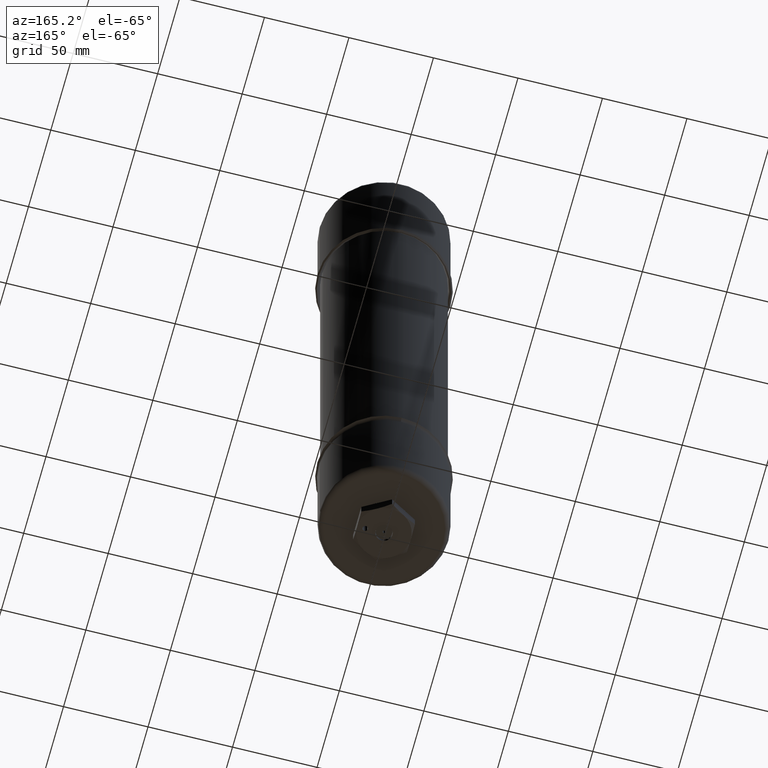
[diagram: clean part render]
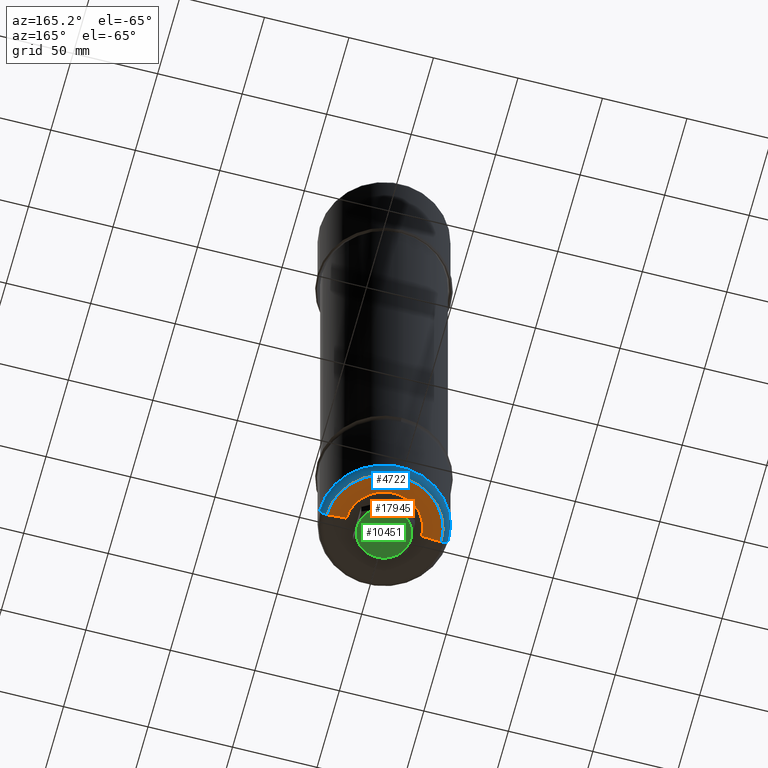
[diagram: same view with three faces highlighted in distinct colors, each labeled with its STEP entity id]
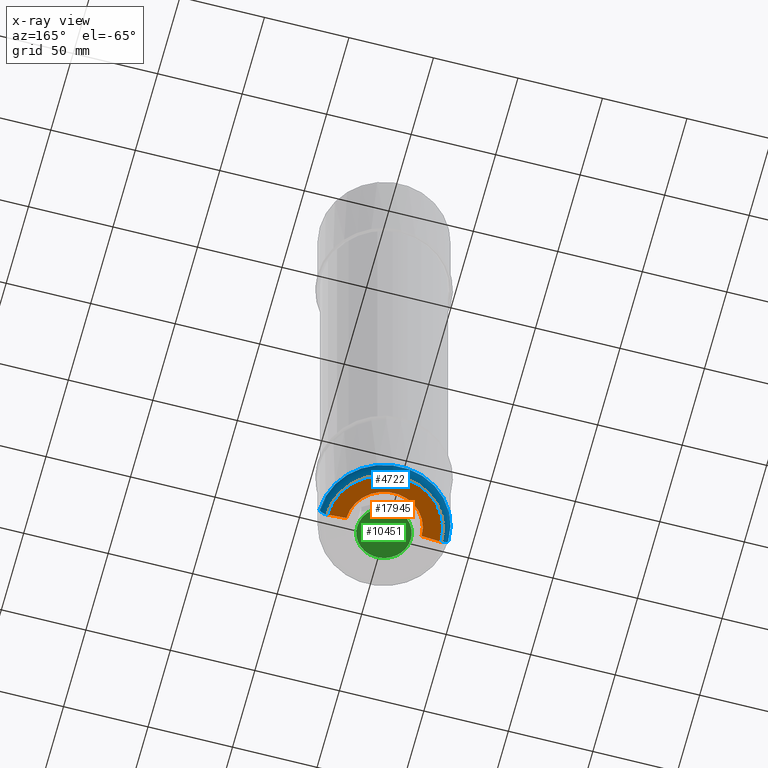
[diagram: x-ray of the same camera — body ghosted, the three highlighted faces saturated]
A machine part, auxiliary view with three faces highlighted in distinct colors.
The next image is the same camera in x-ray (body ghosted, the three faces saturated) — at least one of them is partly hidden behind the body in this view.
Their STEP definitions:

[orange] entity #17945 — the highlighted conical surface has half-angle 82.262 deg.
#51 = DIRECTION ( 'NONE',  ( 3.615957403777705200E-015, 5.894733914474515000E-022, -1.000000000000000000 ) ) ;
#816 = DIRECTION ( 'NONE',  ( -1.000000000000000000, 5.551115123126433500E-017, -2.497689594207326400E-015 ) ) ;
#1205 = EDGE_CURVE ( 'NONE', #12572, #12347, #1423, .T. ) ;
#1212 = AXIS2_PLACEMENT_3D ( 'NONE', #18170, #9481, #816 ) ;
#1370 = ORIENTED_EDGE ( 'NONE', *, *, #18360, .F. ) ;
#1423 = CIRCLE ( 'NONE', #1212, 0.8750000000000000000 ) ;
#2151 = EDGE_LOOP ( 'NONE', ( #1370, #4588, #18257, #7545 ) ) ;
#2587 = EDGE_CURVE ( 'NONE', #10941, #3626, #16254, .T. ) ;
#2686 = CONICAL_SURFACE ( 'NONE', #5515, 1.331253775764203800, 1.435734332793960900 ) ;
#3626 = VERTEX_POINT ( 'NONE', #8436 ) ;
#4345 = LINE ( 'NONE', #11577, #15454 ) ;
#4588 = ORIENTED_EDGE ( 'NONE', *, *, #1205, .F. ) ;
#4649 = CARTESIAN_POINT ( 'NONE',  ( 0.8750000000001068000, -3.578941676957135700E-015, -15.19849999999999700 ) ) ;
#4792 = CARTESIAN_POINT ( 'NONE',  ( -1.331253775764002200, -3.578900466739147000E-015, -15.26050000000000600 ) ) ;
#5088 = CARTESIAN_POINT ( 'NONE',  ( -0.8749999999998930900, -3.604227675632773200E-015, -15.19850000000000300 ) ) ;
#5187 = CARTESIAN_POINT ( 'NONE',  ( 1.070748055044184200E-013, -4.872241979974202000E-015, -15.26050000000000200 ) ) ;
#5515 = AXIS2_PLACEMENT_3D ( 'NONE', #15909, #51, #17451 ) ;
#6006 = VECTOR ( 'NONE', #8320, 39.37007874015748100 ) ;
#6639 = DIRECTION ( 'NONE',  ( -5.551115123125200300E-017, -1.000000000000000000, 0.0000000000000000000 ) ) ;
#7545 = ORIENTED_EDGE ( 'NONE', *, *, #2587, .T. ) ;
#8320 = DIRECTION ( 'NONE',  ( 0.9908929855085434300, 6.634386130111454200E-017, -0.1346517406867267500 ) ) ;
#8436 = CARTESIAN_POINT ( 'NONE',  ( 1.331253775764212400, -3.563667758552179300E-015, -15.26049999999999700 ) ) ;
#9481 = DIRECTION ( 'NONE',  ( 3.615957403777705200E-015, 5.894733914474515000E-022, -1.000000000000000000 ) ) ;
#9760 = EDGE_CURVE ( 'NONE', #12572, #10941, #4345, .T. ) ;
#10941 = VERTEX_POINT ( 'NONE', #4792 ) ;
#11577 = CARTESIAN_POINT ( 'NONE',  ( -1.331253775764096800, -3.578900466739141400E-015, -15.26050000000002000 ) ) ;
#12195 = FACE_OUTER_BOUND ( 'NONE', #2151, .T. ) ;
#12347 = VERTEX_POINT ( 'NONE', #4649 ) ;
#12572 = VERTEX_POINT ( 'NONE', #5088 ) ;
#14333 = AXIS2_PLACEMENT_3D ( 'NONE', #5187, #15305, #6639 ) ;
#15305 = DIRECTION ( 'NONE',  ( 3.491481426663245200E-015, 5.894733914543613400E-022, -1.000000000000000000 ) ) ;
#15454 = VECTOR ( 'NONE', #17287, 39.37007874015748900 ) ;
#15909 = CARTESIAN_POINT ( 'NONE',  ( 1.070748055044184700E-013, -3.652799896412780200E-015, -15.26050000000001500 ) ) ;
#16254 = CIRCLE ( 'NONE', #14333, 1.331253775764101000 ) ;
#16971 = CARTESIAN_POINT ( 'NONE',  ( 1.331253775764311000, -3.563667758552172200E-015, -15.26050000000001100 ) ) ;
#17287 = DIRECTION ( 'NONE',  ( -0.9908929855085424300, 5.500568974618211700E-017, -0.1346517406867338800 ) ) ;
#17451 = DIRECTION ( 'NONE',  ( -1.000000000000000000, 5.551115123126448300E-017, -3.283338510986518400E-015 ) ) ;
#17585 = LINE ( 'NONE', #16971, #6006 ) ;
#17945 = ADVANCED_FACE ( 'NONE', ( #12195 ), #2686, .F. ) ;
#18170 = CARTESIAN_POINT ( 'NONE',  ( 1.068506161453842100E-013, -3.652799932960130100E-015, -15.19850000000000100 ) ) ;
#18257 = ORIENTED_EDGE ( 'NONE', *, *, #9760, .T. ) ;
#18360 = EDGE_CURVE ( 'NONE', #12347, #3626, #17585, .T. ) ;

[blue] entity #4722 — the highlighted toroidal blend (fillet) surface has major radius 33.909 mm and minor (blend) radius 4.1656 mm.
#77 = ORIENTED_EDGE ( 'NONE', *, *, #9258, .F. ) ;
#706 = CARTESIAN_POINT ( 'NONE',  ( 1.335000000000106100, -3.726907379980153200E-015, -15.09649999999999500 ) ) ;
#860 = AXIS2_PLACEMENT_3D ( 'NONE', #15699, #7023, #17172 ) ;
#969 = CIRCLE ( 'NONE', #17019, 0.1639999999999999500 ) ;
#1080 = CARTESIAN_POINT ( 'NONE',  ( 1.070990278565909100E-013, -3.652799896412780200E-015, -15.26050000000000000 ) ) ;
#2160 = DIRECTION ( 'NONE',  ( 1.000000000000000000, -5.551115123126512400E-017, 0.0000000000000000000 ) ) ;
#2190 = VERTEX_POINT ( 'NONE', #12061 ) ;
#2545 = DIRECTION ( 'NONE',  ( 1.000000000000000000, -5.551115123126433500E-017, 3.274124936226833700E-015 ) ) ;
#4342 = CARTESIAN_POINT ( 'NONE',  ( 1.335000000000106500, -3.726907283306517700E-015, -15.26049999999999500 ) ) ;
#4722 = ADVANCED_FACE ( 'NONE', ( #11272 ), #9917, .T. ) ;
#5408 = CARTESIAN_POINT ( 'NONE',  ( -1.334999999999892500, -3.400608192015715700E-015, -15.26050000000000400 ) ) ;
#5585 = CIRCLE ( 'NONE', #9948, 1.334999999999999500 ) ;
#6095 = CIRCLE ( 'NONE', #18258, 0.1639999999999999500 ) ;
#6482 = ORIENTED_EDGE ( 'NONE', *, *, #17559, .T. ) ;
#6541 = DIRECTION ( 'NONE',  ( 1.000000000000000000, -5.551115123126442100E-017, 3.491481426663245600E-015 ) ) ;
#6989 = DIRECTION ( 'NONE',  ( 1.779758311459997800E-016, 1.000000000000000000, 5.894733920757606600E-022 ) ) ;
#7023 = DIRECTION ( 'NONE',  ( -3.491481426663245200E-015, -5.894733914543613400E-022, 1.000000000000000000 ) ) ;
#7542 = AXIS2_PLACEMENT_3D ( 'NONE', #16608, #15209, #6541 ) ;
#8192 = ORIENTED_EDGE ( 'NONE', *, *, #16757, .F. ) ;
#9258 = EDGE_CURVE ( 'NONE', #12249, #14222, #969, .T. ) ;
#9917 = TOROIDAL_SURFACE ( 'NONE', #7542, 1.334999999999999500, 0.1640000000000000100 ) ;
#9948 = AXIS2_PLACEMENT_3D ( 'NONE', #1080, #11216, #2545 ) ;
#10818 = DIRECTION ( 'NONE',  ( -5.551115123126447100E-017, -1.000000000000000000, -5.894733916481775000E-022 ) ) ;
#11216 = DIRECTION ( 'NONE',  ( -3.491481426663245200E-015, -5.894733914543613400E-022, 1.000000000000000000 ) ) ;
#11272 = FACE_OUTER_BOUND ( 'NONE', #14451, .T. ) ;
#12061 = CARTESIAN_POINT ( 'NONE',  ( -1.498999999999892900, -3.386014222198561700E-015, -15.09650000000000400 ) ) ;
#12249 = VERTEX_POINT ( 'NONE', #4342 ) ;
#13882 = ORIENTED_EDGE ( 'NONE', *, *, #15338, .T. ) ;
#14222 = VERTEX_POINT ( 'NONE', #18214 ) ;
#14322 = VERTEX_POINT ( 'NONE', #5408 ) ;
#14451 = EDGE_LOOP ( 'NONE', ( #13882, #6482, #8192, #77 ) ) ;
#15209 = DIRECTION ( 'NONE',  ( -3.491481426663245200E-015, -5.894733914543613400E-022, 1.000000000000000000 ) ) ;
#15338 = EDGE_CURVE ( 'NONE', #12249, #14322, #5585, .T. ) ;
#15661 = CARTESIAN_POINT ( 'NONE',  ( -1.334999999999892900, -3.415202258506506000E-015, -15.09650000000000400 ) ) ;
#15699 = CARTESIAN_POINT ( 'NONE',  ( 1.065297313397734400E-013, -3.652799993086415600E-015, -15.09650000000000100 ) ) ;
#16608 = CARTESIAN_POINT ( 'NONE',  ( 1.065297313397734400E-013, -3.652799993086415600E-015, -15.09650000000000100 ) ) ;
#16757 = EDGE_CURVE ( 'NONE', #14222, #2190, #18664, .T. ) ;
#17019 = AXIS2_PLACEMENT_3D ( 'NONE', #706, #10818, #2160 ) ;
#17137 = DIRECTION ( 'NONE',  ( -1.000000000000000000, 1.779758311459998500E-016, 0.0000000000000000000 ) ) ;
#17172 = DIRECTION ( 'NONE',  ( 1.000000000000000000, -5.551115123126442100E-017, 2.915915136666326200E-015 ) ) ;
#17559 = EDGE_CURVE ( 'NONE', #14322, #2190, #6095, .T. ) ;
#18214 = CARTESIAN_POINT ( 'NONE',  ( 1.499000000000106000, -3.736011208782080300E-015, -15.09649999999999500 ) ) ;
#18258 = AXIS2_PLACEMENT_3D ( 'NONE', #15661, #6989, #17137 ) ;
#18664 = CIRCLE ( 'NONE', #860, 1.498999999999999400 ) ;

[green] entity #10451 — the highlighted planar face has unit normal (-0, -0, 1).
#145 = CIRCLE ( 'NONE', #894, 0.6250000000012138100 ) ;
#202 = AXIS2_PLACEMENT_3D ( 'NONE', #12664, #3991, #14132 ) ;
#235 = EDGE_CURVE ( 'NONE', #4035, #6662, #15865, .T. ) ;
#540 = ORIENTED_EDGE ( 'NONE', *, *, #12675, .F. ) ;
#675 = DIRECTION ( 'NONE',  ( 1.000000000000000000, 5.551115123126677600E-017, 3.496765431883466000E-015 ) ) ;
#852 = DIRECTION ( 'NONE',  ( -3.467565987494412100E-015, -1.201074152410390000E-016, 1.000000000000000000 ) ) ;
#894 = AXIS2_PLACEMENT_3D ( 'NONE', #2330, #12443, #3759 ) ;
#1069 = CIRCLE ( 'NONE', #9983, 0.6250000000012138100 ) ;
#1449 = AXIS2_PLACEMENT_3D ( 'NONE', #14383, #5710, #15847 ) ;
#1564 = CARTESIAN_POINT ( 'NONE',  ( 1.079780208719109100E-013, -3.666943224415984000E-015, -15.51050000000000000 ) ) ;
#1743 = CARTESIAN_POINT ( 'NONE',  ( 0.3125000000010415600, 0.5412658773655882900, -15.51050000000048700 ) ) ;
#1744 = ORIENTED_EDGE ( 'NONE', *, *, #2976, .T. ) ;
#1961 = CIRCLE ( 'NONE', #16154, 0.1955000000000001500 ) ;
#2198 = ORIENTED_EDGE ( 'NONE', *, *, #4270, .F. ) ;
#2330 = CARTESIAN_POINT ( 'NONE',  ( 8.580405687876359800E-013, -3.666943224415942200E-015, -15.51050000000000000 ) ) ;
#2358 = DIRECTION ( 'NONE',  ( -3.467565987494412100E-015, -1.201074152410390000E-016, 1.000000000000000000 ) ) ;
#2719 = FACE_OUTER_BOUND ( 'NONE', #5660, .T. ) ;
#2847 = AXIS2_PLACEMENT_3D ( 'NONE', #12747, #4078, #14209 ) ;
#2976 = EDGE_CURVE ( 'NONE', #4482, #17248, #1961, .T. ) ;
#3018 = DIRECTION ( 'NONE',  ( 1.000000000000000000, 5.551115123126604800E-017, 0.0000000000000000000 ) ) ;
#3212 = EDGE_CURVE ( 'NONE', #5342, #4035, #145, .T. ) ;
#3373 = DIRECTION ( 'NONE',  ( -3.467565987494412100E-015, -1.201074152410390000E-016, 1.000000000000000000 ) ) ;
#3493 = CARTESIAN_POINT ( 'NONE',  ( 0.4380000000000539000, 1.899020975087255600E-015, -15.51049999999999900 ) ) ;
#3608 = ORIENTED_EDGE ( 'NONE', *, *, #11001, .F. ) ;
#3728 = CARTESIAN_POINT ( 'NONE',  ( 0.4380000000000539000, -0.06249999999999805000, -15.51049999999999900 ) ) ;
#3759 = DIRECTION ( 'NONE',  ( 1.000000000000000000, 5.551115123126677600E-017, 3.496765431883466000E-015 ) ) ;
#3991 = DIRECTION ( 'NONE',  ( -3.467565987494389600E-015, -1.201074152410390000E-016, 1.000000000000000000 ) ) ;
#4035 = VERTEX_POINT ( 'NONE', #11049 ) ;
#4078 = DIRECTION ( 'NONE',  ( 5.916456789157588500E-030, 1.201074152410390000E-016, -1.000000000000000000 ) ) ;
#4237 = CARTESIAN_POINT ( 'NONE',  ( 0.1955000000001081200, -3.656090794350271700E-015, -15.51050000000000000 ) ) ;
#4270 = EDGE_CURVE ( 'NONE', #9337, #18339, #12201, .T. ) ;
#4373 = CIRCLE ( 'NONE', #15258, 0.1955000000000001500 ) ;
#4482 = VERTEX_POINT ( 'NONE', #4237 ) ;
#4947 = DIRECTION ( 'NONE',  ( 0.0000000000000000000, 1.000000000000000000, 0.0000000000000000000 ) ) ;
#5219 = ORIENTED_EDGE ( 'NONE', *, *, #3212, .F. ) ;
#5313 = CARTESIAN_POINT ( 'NONE',  ( -0.3124999999996078100, -0.5412658773660845600, -15.51050000000016400 ) ) ;
#5342 = VERTEX_POINT ( 'NONE', #5313 ) ;
#5660 = EDGE_LOOP ( 'NONE', ( #3608, #16734, #5219, #12384, #18266, #9534 ) ) ;
#5668 = CARTESIAN_POINT ( 'NONE',  ( -0.3124999999996079200, 0.5412658773660771200, -15.51050000000016400 ) ) ;
#5710 = DIRECTION ( 'NONE',  ( -3.467565987494412100E-015, -1.201074152410390000E-016, 1.000000000000000000 ) ) ;
#5713 = AXIS2_PLACEMENT_3D ( 'NONE', #3493, #13609, #4947 ) ;
#5922 = CARTESIAN_POINT ( 'NONE',  ( -0.6250000000003556000, -3.701637693935551700E-015, -15.51050000000000200 ) ) ;
#6551 = FACE_BOUND ( 'NONE', #7181, .T. ) ;
#6662 = VERTEX_POINT ( 'NONE', #14147 ) ;
#7181 = EDGE_LOOP ( 'NONE', ( #2198, #540 ) ) ;
#7426 = ORIENTED_EDGE ( 'NONE', *, *, #16027, .T. ) ;
#7837 = DIRECTION ( 'NONE',  ( 5.179652902568723900E-013, -1.201074152410100600E-016, 1.000000000000000000 ) ) ;
#8319 = AXIS2_PLACEMENT_3D ( 'NONE', #11020, #2358, #12459 ) ;
#8322 = EDGE_CURVE ( 'NONE', #9576, #5342, #9637, .T. ) ;
#9334 = DIRECTION ( 'NONE',  ( -3.467565987494412100E-015, -1.201074152410390000E-016, 1.000000000000000000 ) ) ;
#9337 = VERTEX_POINT ( 'NONE', #15561 ) ;
#9428 = EDGE_LOOP ( 'NONE', ( #1744, #7426 ) ) ;
#9529 = CARTESIAN_POINT ( 'NONE',  ( 8.580405687876359800E-013, -3.666943224415942200E-015, -15.51050000000000000 ) ) ;
#9534 = ORIENTED_EDGE ( 'NONE', *, *, #11555, .F. ) ;
#9576 = VERTEX_POINT ( 'NONE', #5922 ) ;
#9637 = CIRCLE ( 'NONE', #8319, 0.6250000000012138100 ) ;
#9983 = AXIS2_PLACEMENT_3D ( 'NONE', #9529, #852, #10982 ) ;
#10068 = CARTESIAN_POINT ( 'NONE',  ( -0.1954999999998920400, -3.661420576718551800E-015, -15.51050000000000000 ) ) ;
#10451 = ADVANCED_FACE ( 'NONE', ( #6551, #14262, #2719 ), #14064, .F. ) ;
#10982 = DIRECTION ( 'NONE',  ( 1.000000000000000000, 5.551115123126677600E-017, 3.496765431883466000E-015 ) ) ;
#11001 = EDGE_CURVE ( 'NONE', #6662, #11387, #15806, .T. ) ;
#11020 = CARTESIAN_POINT ( 'NONE',  ( 8.580405687876359800E-013, -3.666943224415942200E-015, -15.51050000000000000 ) ) ;
#11049 = CARTESIAN_POINT ( 'NONE',  ( 0.3125000000010413900, -0.5412658773655957300, -15.51050000000048700 ) ) ;
#11387 = VERTEX_POINT ( 'NONE', #1743 ) ;
#11475 = EDGE_CURVE ( 'NONE', #15787, #9576, #15534, .T. ) ;
#11555 = EDGE_CURVE ( 'NONE', #11387, #15787, #1069, .T. ) ;
#11702 = DIRECTION ( 'NONE',  ( -3.467565987494412100E-015, -1.201074152410390000E-016, 1.000000000000000000 ) ) ;
#12035 = CIRCLE ( 'NONE', #2847, 0.06249999999999997200 ) ;
#12053 = CARTESIAN_POINT ( 'NONE',  ( 1.079780208719109100E-013, -3.666943224415984000E-015, -15.51050000000000000 ) ) ;
#12201 = CIRCLE ( 'NONE', #5713, 0.06249999999999997200 ) ;
#12384 = ORIENTED_EDGE ( 'NONE', *, *, #8322, .F. ) ;
#12443 = DIRECTION ( 'NONE',  ( -3.467565987494412100E-015, -1.201074152410390000E-016, 1.000000000000000000 ) ) ;
#12459 = DIRECTION ( 'NONE',  ( 1.000000000000000000, 5.551115123126677600E-017, 3.496765431883466000E-015 ) ) ;
#12664 = CARTESIAN_POINT ( 'NONE',  ( 0.6250000000001079100, -0.3608439182435002100, -15.51049999999999900 ) ) ;
#12675 = EDGE_CURVE ( 'NONE', #18339, #9337, #12035, .T. ) ;
#12747 = CARTESIAN_POINT ( 'NONE',  ( 0.4380000000000539000, 1.899020975087255600E-015, -15.51049999999999900 ) ) ;
#13477 = DIRECTION ( 'NONE',  ( 1.000000000000000000, 5.551115123126604800E-017, 0.0000000000000000000 ) ) ;
#13609 = DIRECTION ( 'NONE',  ( 5.916456789157588500E-030, 1.201074152410390000E-016, -1.000000000000000000 ) ) ;
#14064 = PLANE ( 'NONE',  #202 ) ;
#14132 = DIRECTION ( 'NONE',  ( 1.000000000000000000, 5.551115123126710800E-017, 3.467565987494389600E-015 ) ) ;
#14147 = CARTESIAN_POINT ( 'NONE',  ( 0.6250000000009429100, -3.632248754896316900E-015, -15.51050000000064900 ) ) ;
#14209 = DIRECTION ( 'NONE',  ( 0.0000000000000000000, 1.000000000000000000, 0.0000000000000000000 ) ) ;
#14262 = FACE_BOUND ( 'NONE', #9428, .T. ) ;
#14383 = CARTESIAN_POINT ( 'NONE',  ( 8.580405687876359800E-013, -3.666943224415942200E-015, -15.51050000000000000 ) ) ;
#15258 = AXIS2_PLACEMENT_3D ( 'NONE', #12053, #3373, #13477 ) ;
#15534 = CIRCLE ( 'NONE', #17128, 0.6250000000012138100 ) ;
#15561 = CARTESIAN_POINT ( 'NONE',  ( 0.4380000000000539000, 0.06250000000000187400, -15.51049999999999900 ) ) ;
#15787 = VERTEX_POINT ( 'NONE', #5668 ) ;
#15806 = CIRCLE ( 'NONE', #16239, 0.6250000000006492600 ) ;
#15847 = DIRECTION ( 'NONE',  ( 1.000000000000000000, 5.551115123126677600E-017, 3.496765431883466000E-015 ) ) ;
#15865 = CIRCLE ( 'NONE', #1449, 0.6250000000012138100 ) ;
#16027 = EDGE_CURVE ( 'NONE', #17248, #4482, #4373, .T. ) ;
#16154 = AXIS2_PLACEMENT_3D ( 'NONE', #1564, #11702, #3018 ) ;
#16239 = AXIS2_PLACEMENT_3D ( 'NONE', #16500, #7837, #17968 ) ;
#16500 = CARTESIAN_POINT ( 'NONE',  ( 2.935729439413080500E-013, -3.666943224415934300E-015, -15.51050000000032500 ) ) ;
#16734 = ORIENTED_EDGE ( 'NONE', *, *, #235, .F. ) ;
#17128 = AXIS2_PLACEMENT_3D ( 'NONE', #18014, #9334, #675 ) ;
#17248 = VERTEX_POINT ( 'NONE', #10068 ) ;
#17968 = DIRECTION ( 'NONE',  ( 1.000000000000000000, 5.551115123133011900E-017, -5.175212839192203900E-013 ) ) ;
#18014 = CARTESIAN_POINT ( 'NONE',  ( 8.580405687876359800E-013, -3.666943224415942200E-015, -15.51050000000000000 ) ) ;
#18266 = ORIENTED_EDGE ( 'NONE', *, *, #11475, .F. ) ;
#18339 = VERTEX_POINT ( 'NONE', #3728 ) ;